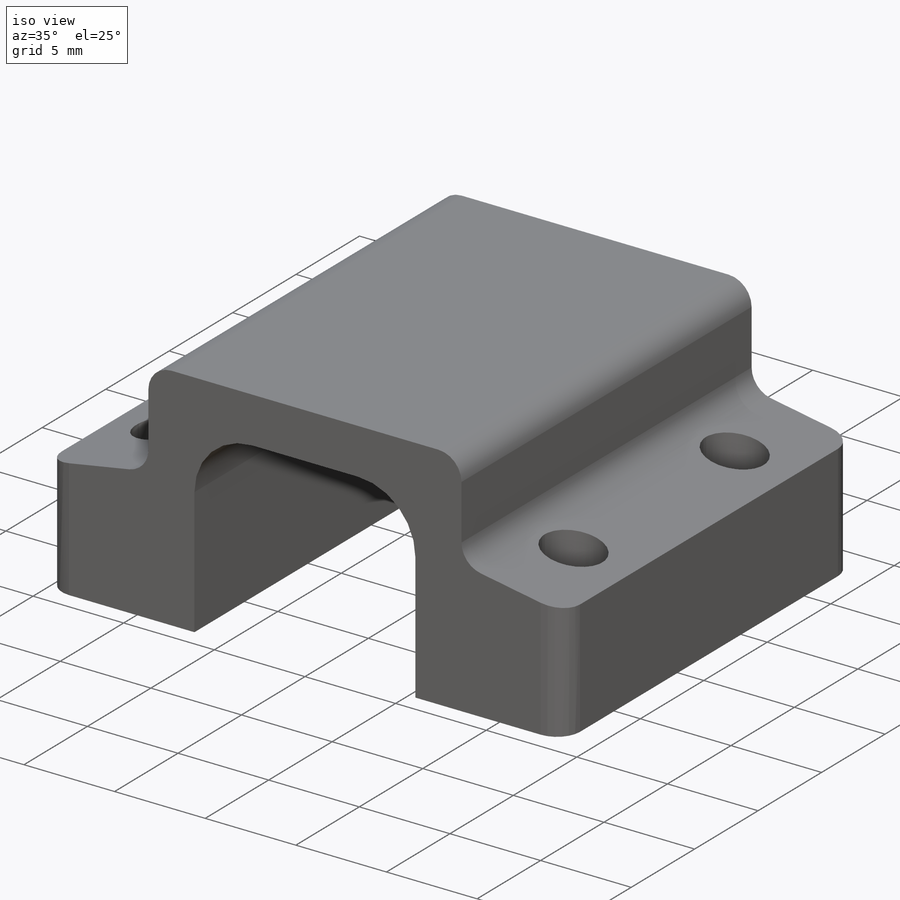
[diagram: iso view]
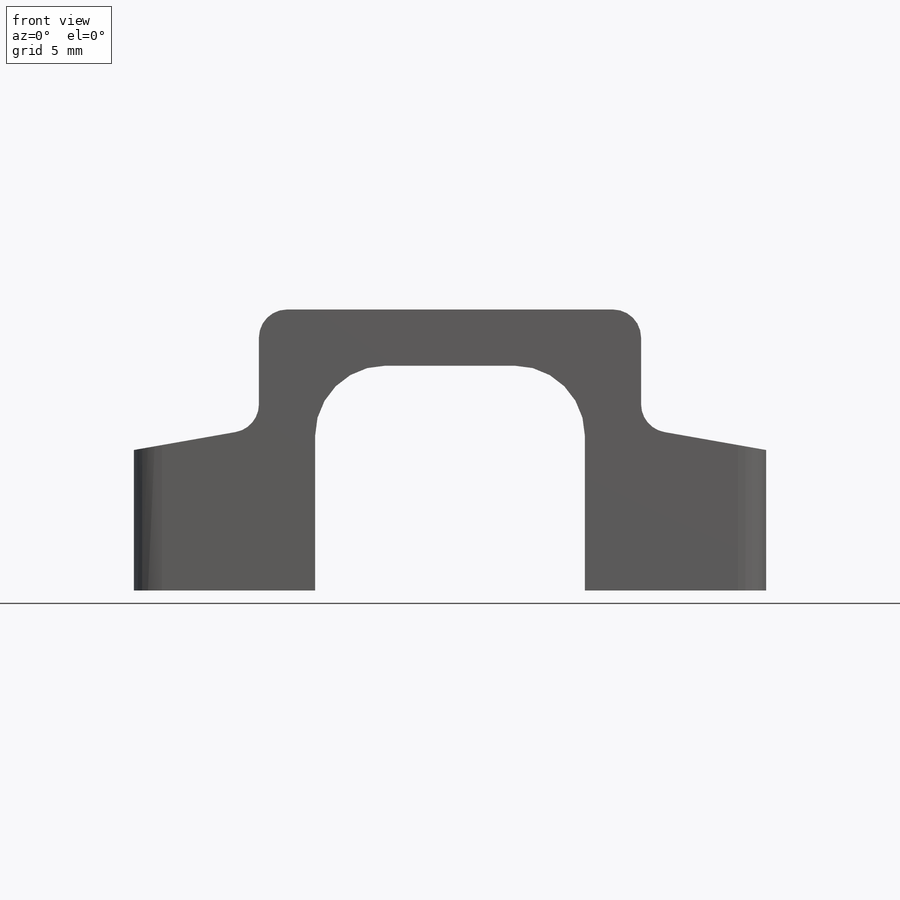
[diagram: front view]
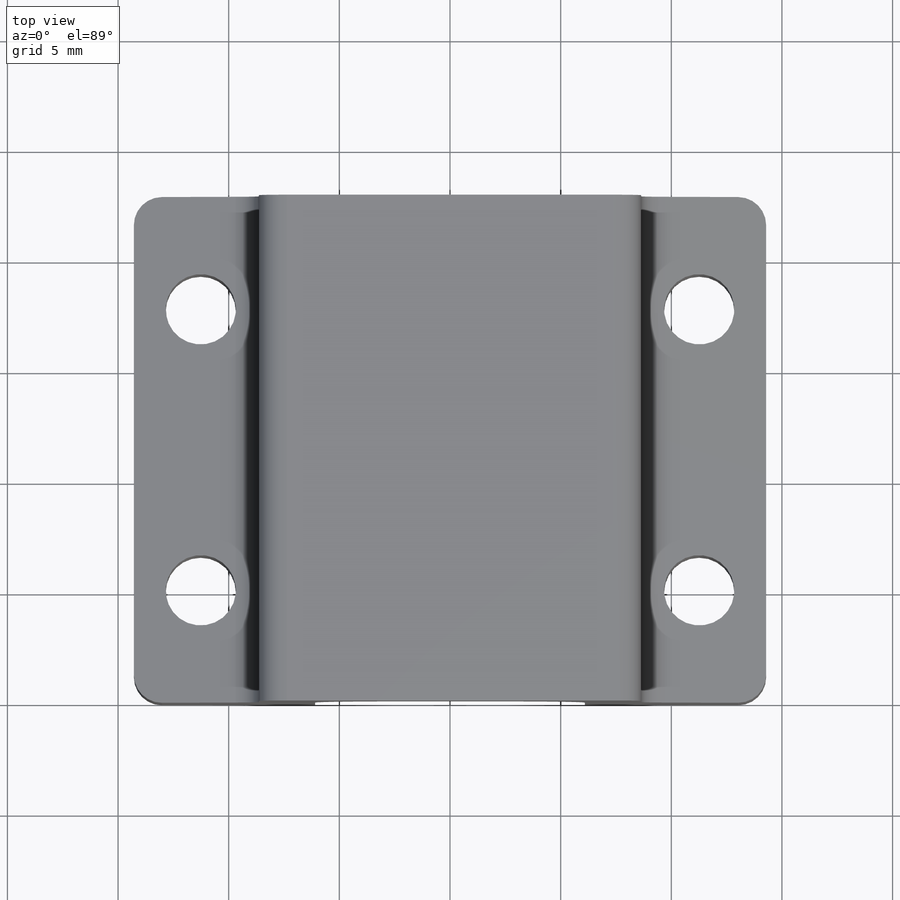
[diagram: top view]
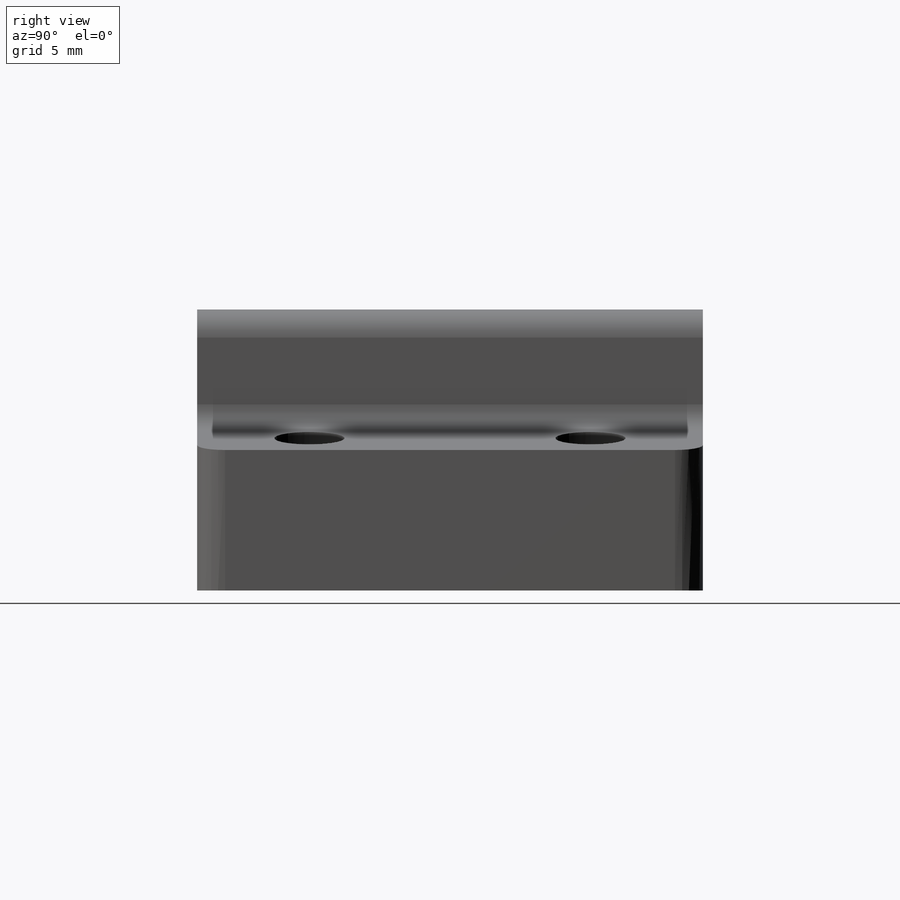
[diagram: right view]
SOLIDWORKS PART (.sldprt)
format: sldprt  version: not decoded by parser v0  size: 290,816 bytes
history: native  units: mm
features: sketch x6, extrude x4, plane x2, mirror x2, material x1, cut_revolve x1, fillet x1 (+12 scaffold rows collapsed)
feature tree (29):
  scaffold x12  (default folders/planes/origin — collapsed)
  material  "Material <not specified>"
  sketch  "Sketch1"  dims[c1.D1=10.16mm c1.D2=~17.517622mm c1.D3=12.192mm c2.D2=2.54mm c2.D4=12.7mm c2.D5=6.35mm c2.D6=1.016mm c2.D7=28.575mm c2.D8=5.3975mm c3.D8=10.0deg c3.D9=5.3975mm c4.D9=10.0deg c4.D10=6.35mm]
  extrude  "Boss-Extrude1"  Depth=22.86mm
  sketch  "Sketch2"  dims[D1=3.175mm]
  extrude  "Boss-Extrude2"  Depth=13.462mm
  sketch  "Sketch3"  dims[D1=0.0mm D2=0.0mm]
  extrude  "Boss-Extrude3"  Depth=1.905mm
  sketch  "Sketch4"  dims[D1=0.0mm]
  extrude  "Boss-Extrude4"  Depth=3.81mm
  sketch  "Sketch5"  dims[D1=0.8128mm D2=11.811mm D3=5.842mm D4=4.0132mm D5=24.13mm]
  plane  "Plane1"  Offset=5.08mm
  sketch  "Sketch6"  dims[c1.D1=5.334mm c1.D2=~2.180331mm c2.D2=80.0deg c2.D3=2.54mm c2.D4=3.175mm c2.D5=1.27mm c2.D6=5.3975mm c3.D6=~14.34719deg c4.D6=5.3975mm c5.D6=~9.737413deg c5.D2=~5.476397mm c6.D2=10.0deg c6.D6=2.54mm]
  cut_revolve  "Cut-Revolve1"  Angle=360deg
  mirror  "Mirror1"
  plane  "Plane2"
  mirror  "Mirror2"
  fillet  "Fillet1"  Radius=1.27mm
decode coverage: 12 of 14 modeling features carry decoded parameters
note: ~ marks probable driven/reference dimensions
note: suppression state not decoded; provenance and decode notes live in map.json
